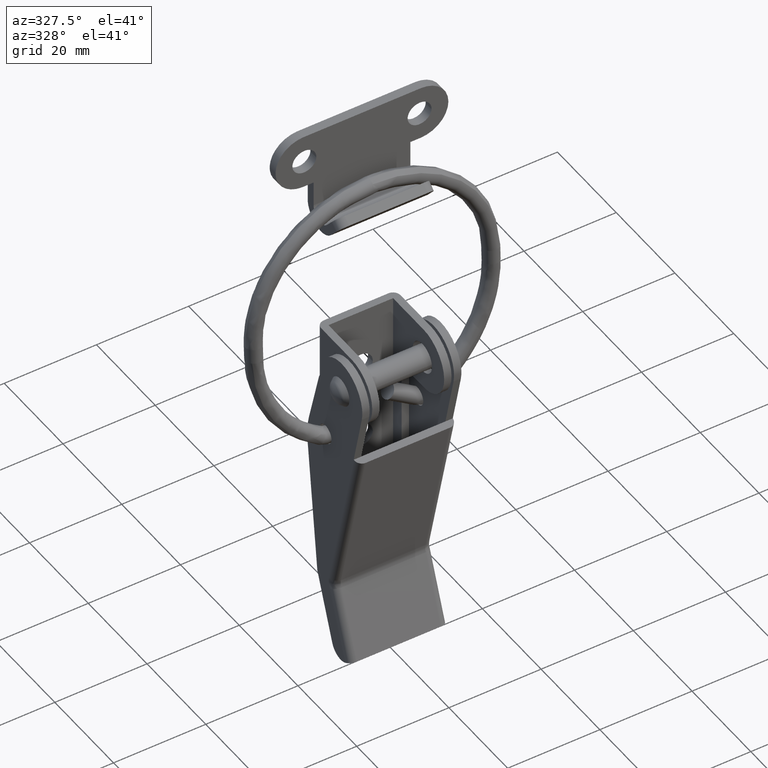
[diagram: clean part render]
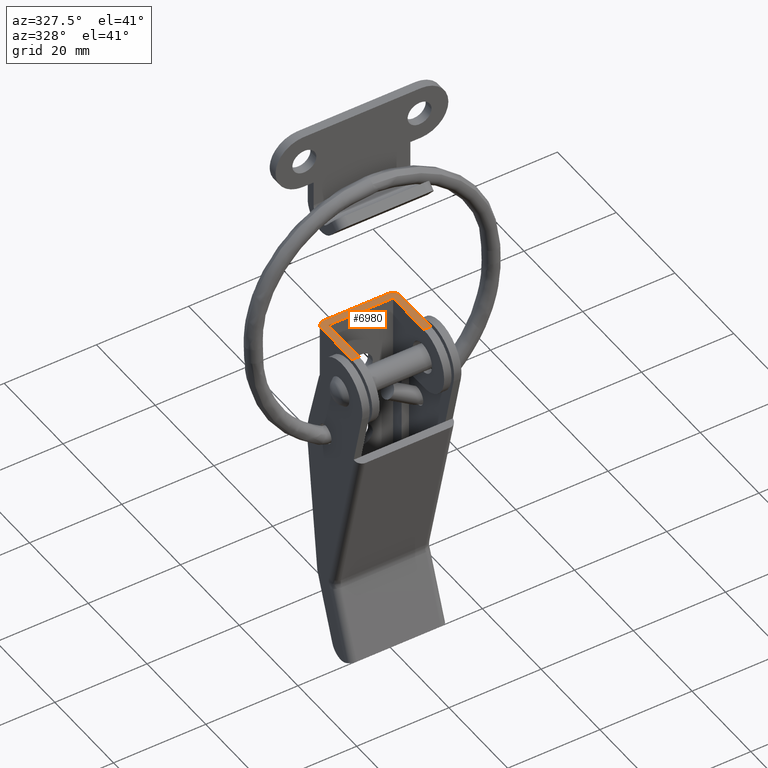
[diagram: same view with one face highlighted and labeled with its STEP entity id]
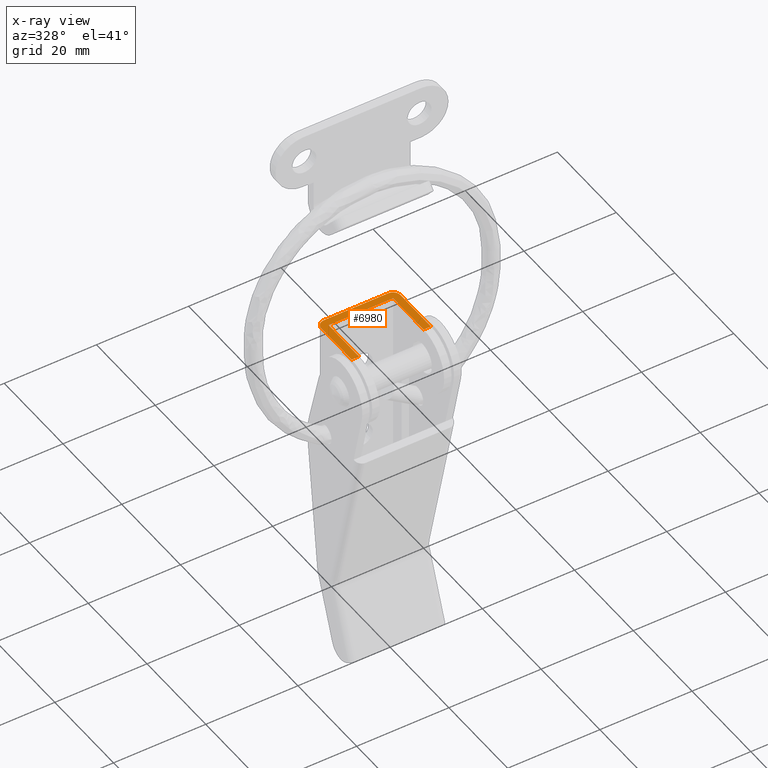
[diagram: x-ray of the same camera — body ghosted, the highlighted face saturated]
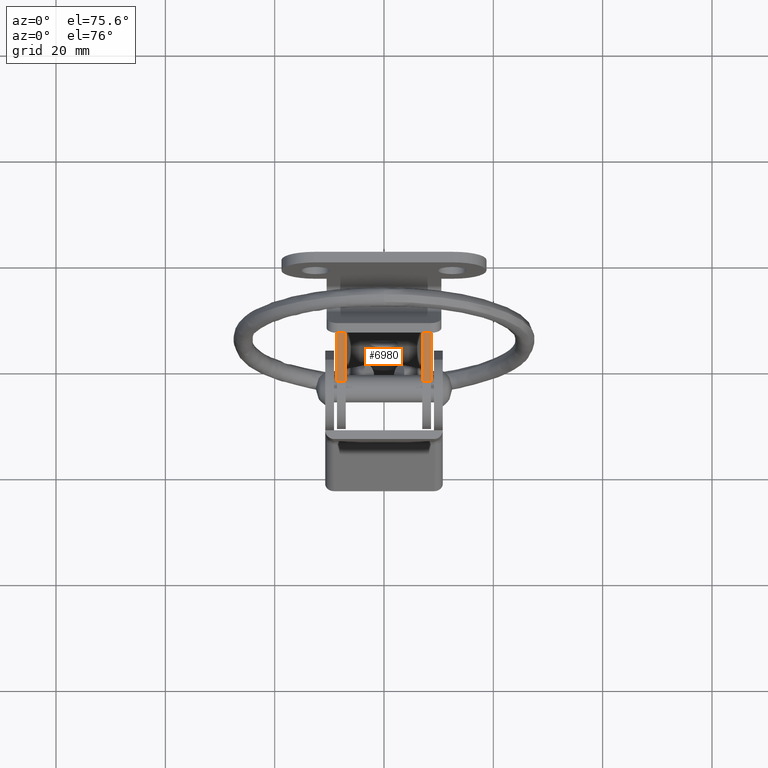
[diagram: same view with one face highlighted and labeled with its STEP entity id]
A machine part, auxiliary view. The second image highlights one B-rep face of the part: STEP entity #6980.
The next image is the same camera in x-ray: the body ghosted, the highlighted face saturated — about 0% of this face is hidden behind the body in this view.
A second angle (auxiliary view) of the same face is appended — the face is thin or edge-on in the first view.
In plain terms, the highlighted face is a freeform B-spline surface patch.
Its self-contained STEP definition (entity closure, byte-faithful):
#6362=CARTESIAN_POINT('',(8.599999000000000,9.999990000000000,7.0));
#6363=VERTEX_POINT('',#6362);
#6364=CARTESIAN_POINT('',(6.999999000000000,11.599990000000000,7.0));
#6365=VERTEX_POINT('',#6364);
#6366=CARTESIAN_POINT('',(8.599999000000000,9.999990000000000,7.0));
#6367=CARTESIAN_POINT('',(8.599999000000000,11.599990000000002,6.999999999999999));
#6368=CARTESIAN_POINT('',(6.999999000000000,11.599990000000000,7.0));
#6376=(BOUNDED_CURVE()B_SPLINE_CURVE(2,(#6366,#6367,#6368),.UNSPECIFIED.,.F.,.U.)CURVE()GEOMETRIC_REPRESENTATION_ITEM()QUASI_UNIFORM_CURVE()RATIONAL_B_SPLINE_CURVE((1.0,0.707106781186548,1.0))REPRESENTATION_ITEM(''));
#6377=EDGE_CURVE('',#6363,#6365,#6376,.T.);
#6423=CARTESIAN_POINT('',(-6.999998000000001,11.599990000000000,7.0));
#6424=VERTEX_POINT('',#6423);
#6425=CARTESIAN_POINT('',(-8.599997999999999,9.999990000000000,7.0));
#6426=VERTEX_POINT('',#6425);
#6427=CARTESIAN_POINT('',(-6.999998000000001,11.599990000000000,7.0));
#6428=CARTESIAN_POINT('',(-8.599998000000001,11.599990000000002,6.999999999999999));
#6429=CARTESIAN_POINT('',(-8.599998000000001,9.999990000000000,7.0));
#6437=(BOUNDED_CURVE()B_SPLINE_CURVE(2,(#6427,#6428,#6429),.UNSPECIFIED.,.F.,.U.)CURVE()GEOMETRIC_REPRESENTATION_ITEM()QUASI_UNIFORM_CURVE()RATIONAL_B_SPLINE_CURVE((1.0,0.707106781186548,1.0))REPRESENTATION_ITEM(''));
#6438=EDGE_CURVE('',#6424,#6426,#6437,.T.);
#6475=CARTESIAN_POINT('',(-6.999998000000001,-0.400010000000094,7.0));
#6476=VERTEX_POINT('',#6475);
#6477=CARTESIAN_POINT('',(-6.999998000000001,9.999990000000000,7.0));
#6478=VERTEX_POINT('',#6477);
#6479=CARTESIAN_POINT('',(-6.999998000000001,-0.400010000000094,7.0));
#6480=CARTESIAN_POINT('',(-6.999998000000001,9.999990000000000,7.0));
#6481=QUASI_UNIFORM_CURVE('',1,(#6479,#6480),.UNSPECIFIED.,.F.,.U.);
#6482=EDGE_CURVE('',#6476,#6478,#6481,.T.);
#6564=CARTESIAN_POINT('',(6.999999000000000,-0.400010000000094,7.0));
#6565=VERTEX_POINT('',#6564);
#6566=CARTESIAN_POINT('',(6.999999000000000,9.999990000000000,7.0));
#6567=VERTEX_POINT('',#6566);
#6568=CARTESIAN_POINT('',(6.999999000000000,-0.400010000000094,7.0));
#6569=CARTESIAN_POINT('',(6.999999000000000,9.999990000000000,7.0));
#6570=QUASI_UNIFORM_CURVE('',1,(#6568,#6569),.UNSPECIFIED.,.F.,.U.);
#6571=EDGE_CURVE('',#6565,#6567,#6570,.T.);
#6653=CARTESIAN_POINT('',(-8.599997999999999,-0.400010000000094,7.0));
#6654=VERTEX_POINT('',#6653);
#6655=CARTESIAN_POINT('',(-8.599997999999999,-0.400010000000094,7.0));
#6656=CARTESIAN_POINT('',(-8.599997999999999,9.999990000000000,7.0));
#6657=QUASI_UNIFORM_CURVE('',1,(#6655,#6656),.UNSPECIFIED.,.F.,.U.);
#6658=EDGE_CURVE('',#6654,#6426,#6657,.T.);
#6750=CARTESIAN_POINT('',(8.599999000000000,-0.400010000000094,7.0));
#6751=VERTEX_POINT('',#6750);
#6752=CARTESIAN_POINT('',(8.599999000000000,-0.400010000000094,7.0));
#6753=CARTESIAN_POINT('',(8.599999000000000,9.999990000000000,7.0));
#6754=QUASI_UNIFORM_CURVE('',1,(#6752,#6753),.UNSPECIFIED.,.F.,.U.);
#6755=EDGE_CURVE('',#6751,#6363,#6754,.T.);
#6828=CARTESIAN_POINT('',(8.599999000000000,-0.400010000000094,7.0));
#6829=CARTESIAN_POINT('',(6.999999000000000,-0.400010000000094,7.0));
#6830=QUASI_UNIFORM_CURVE('',1,(#6828,#6829),.UNSPECIFIED.,.F.,.U.);
#6831=EDGE_CURVE('',#6751,#6565,#6830,.T.);
#6951=CARTESIAN_POINT('',(-9.459138301196862,-0.999409976741769,7.0));
#6952=CARTESIAN_POINT('',(9.459139301196863,-0.999409976741769,7.0));
#6953=CARTESIAN_POINT('',(-9.459138301196862,12.199390298606760,7.0));
#6954=CARTESIAN_POINT('',(9.459139301196863,12.199390298606760,7.0));
#6955=B_SPLINE_SURFACE_WITH_KNOTS('',1,1,((#6951,#6953),(#6952,#6954)),.UNSPECIFIED.,.F.,.F.,.U.,(2,2),(2,2),(0.0,18.918277602393729),(0.0,13.198800275348530),.UNSPECIFIED.);
#6956=CARTESIAN_POINT('',(6.999999000000000,11.599990000000000,7.0));
#6957=CARTESIAN_POINT('',(-6.999998000000001,11.599990000000000,7.0));
#6958=QUASI_UNIFORM_CURVE('',1,(#6956,#6957),.UNSPECIFIED.,.F.,.U.);
#6959=EDGE_CURVE('',#6365,#6424,#6958,.T.);
#6960=ORIENTED_EDGE('',*,*,#6959,.T.);
#6961=ORIENTED_EDGE('',*,*,#6438,.T.);
#6962=ORIENTED_EDGE('',*,*,#6658,.F.);
#6963=CARTESIAN_POINT('',(-6.999998000000001,-0.400010000000094,7.0));
#6964=CARTESIAN_POINT('',(-8.599997999999999,-0.400010000000094,7.0));
#6965=QUASI_UNIFORM_CURVE('',1,(#6963,#6964),.UNSPECIFIED.,.F.,.U.);
#6966=EDGE_CURVE('',#6476,#6654,#6965,.T.);
#6967=ORIENTED_EDGE('',*,*,#6966,.F.);
#6968=ORIENTED_EDGE('',*,*,#6482,.T.);
#6969=CARTESIAN_POINT('',(6.999999000000000,9.999990000000000,7.0));
#6970=CARTESIAN_POINT('',(-6.999998000000001,9.999990000000000,7.0));
#6971=QUASI_UNIFORM_CURVE('',1,(#6969,#6970),.UNSPECIFIED.,.F.,.U.);
#6972=EDGE_CURVE('',#6567,#6478,#6971,.T.);
#6973=ORIENTED_EDGE('',*,*,#6972,.F.);
#6974=ORIENTED_EDGE('',*,*,#6571,.F.);
#6975=ORIENTED_EDGE('',*,*,#6831,.F.);
#6976=ORIENTED_EDGE('',*,*,#6755,.T.);
#6977=ORIENTED_EDGE('',*,*,#6377,.T.);
#6978=EDGE_LOOP('',(#6960,#6961,#6962,#6967,#6968,#6973,#6974,#6975,#6976,#6977));
#6979=FACE_OUTER_BOUND('',#6978,.T.);
#6980=ADVANCED_FACE('',(#6979),#6955,.T.);